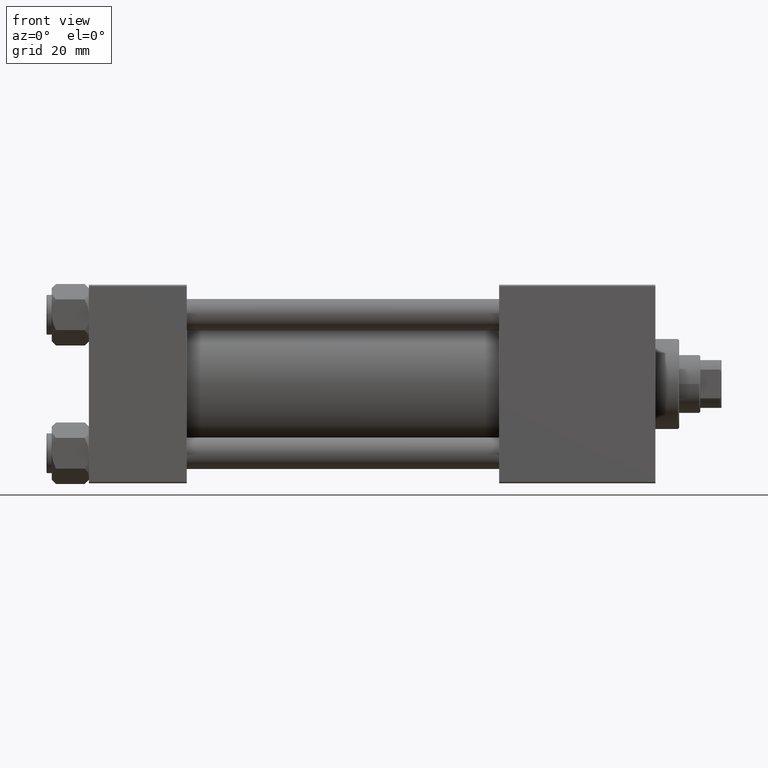
[diagram: clean part render]
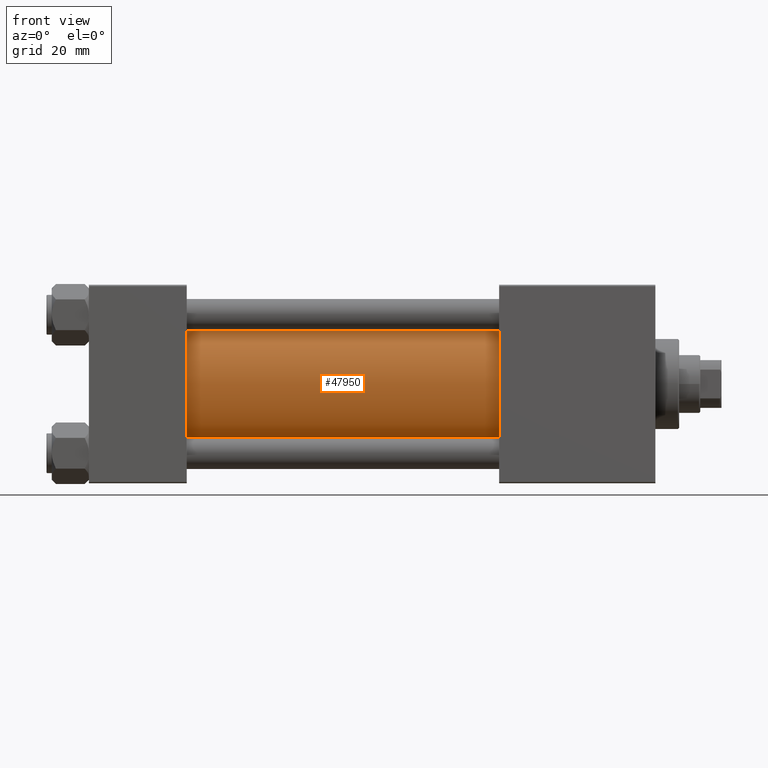
[diagram: same view with one face highlighted and labeled with its STEP entity id]
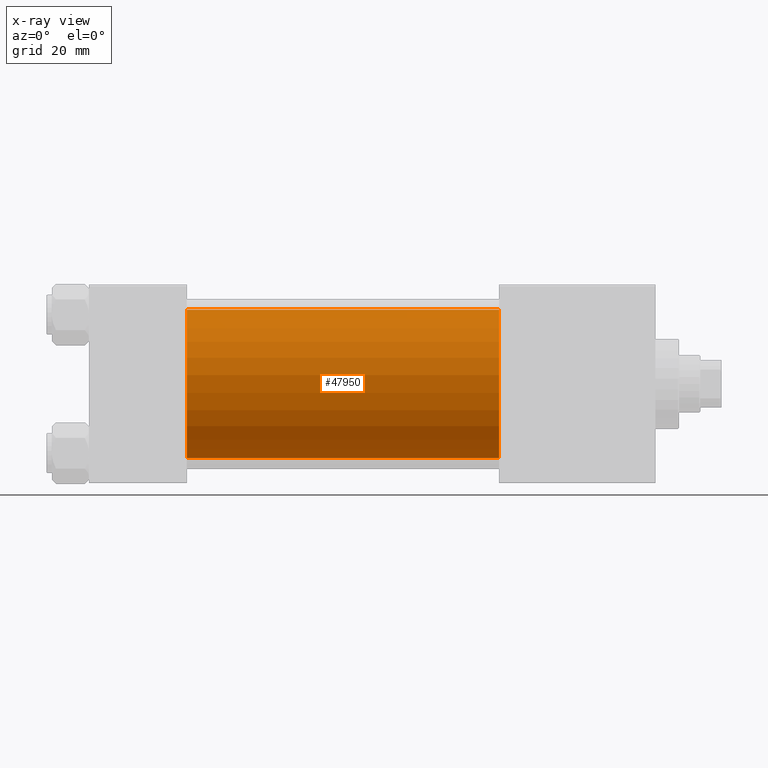
[diagram: x-ray of the same camera — body ghosted, the highlighted face saturated]
A machine part, front view. The second image highlights one B-rep face of the part: STEP entity #47950.
The next image is the same camera in x-ray: the body ghosted, the highlighted face saturated — about 1% of this face is hidden behind the body in this view.
In plain terms, the highlighted cylindrical surface (partial cylindrical patch) has radius 28 mm, axis along (-1, -0, -0).
Its self-contained STEP definition (entity closure, byte-faithful):
#567 = CYLINDRICAL_SURFACE ( 'NONE', #6550, 28.00000000000000000 ) ;
#1295 = EDGE_CURVE ( 'NONE', #22857, #17727, #36285, .T. ) ;
#1559 = EDGE_CURVE ( 'NONE', #15442, #17727, #33489, .T. ) ;
#4130 = CARTESIAN_POINT ( 'NONE',  ( 37.00000000000000711, -2.602085213965210642E-15, 28.00000000000000000 ) ) ;
#6550 = AXIS2_PLACEMENT_3D ( 'NONE', #42585, #31655, #7713 ) ;
#7610 = DIRECTION ( 'NONE',  ( -1.000000000000000000, -0.000000000000000000, -0.000000000000000000 ) ) ;
#7713 = DIRECTION ( 'NONE',  ( 0.000000000000000000, 0.000000000000000000, 1.000000000000000000 ) ) ;
#8110 = LINE ( 'NONE', #19581, #31831 ) ;
#8321 = CARTESIAN_POINT ( 'NONE',  ( 155.0000000000000000, 8.269258236473784371E-16, -28.00000000000000000 ) ) ;
#10460 = CIRCLE ( 'NONE', #12104, 28.00000000000000000 ) ;
#12104 = AXIS2_PLACEMENT_3D ( 'NONE', #25510, #41522, #49661 ) ;
#13976 = VERTEX_POINT ( 'NONE', #32169 ) ;
#14937 = ORIENTED_EDGE ( 'NONE', *, *, #18272, .T. ) ;
#15442 = VERTEX_POINT ( 'NONE', #8321 ) ;
#17545 = ORIENTED_EDGE ( 'NONE', *, *, #44449, .F. ) ;
#17727 = VERTEX_POINT ( 'NONE', #48158 ) ;
#18272 = EDGE_CURVE ( 'NONE', #13976, #22857, #8110, .T. ) ;
#19581 = CARTESIAN_POINT ( 'NONE',  ( 155.0000000000000000, -2.602085213965210642E-15, 28.00000000000000000 ) ) ;
#22857 = VERTEX_POINT ( 'NONE', #4130 ) ;
#25510 = CARTESIAN_POINT ( 'NONE',  ( 155.0000000000000000, -2.602085213965210642E-15, 0.000000000000000000 ) ) ;
#27084 = FACE_OUTER_BOUND ( 'NONE', #34485, .T. ) ;
#31655 = DIRECTION ( 'NONE',  ( -1.000000000000000000, -0.000000000000000000, -0.000000000000000000 ) ) ;
#31831 = VECTOR ( 'NONE', #7610, 1000.000000000000000 ) ;
#32169 = CARTESIAN_POINT ( 'NONE',  ( 155.0000000000000000, -2.602085213965210642E-15, 28.00000000000000000 ) ) ;
#33489 = LINE ( 'NONE', #37304, #44507 ) ;
#34485 = EDGE_LOOP ( 'NONE', ( #46893, #17545, #14937, #47759 ) ) ;
#36285 = CIRCLE ( 'NONE', #42787, 28.00000000000000000 ) ;
#37304 = CARTESIAN_POINT ( 'NONE',  ( 155.0000000000000000, 8.269258236473784371E-16, -28.00000000000000000 ) ) ;
#37618 = DIRECTION ( 'NONE',  ( 0.000000000000000000, 0.000000000000000000, 1.000000000000000000 ) ) ;
#41522 = DIRECTION ( 'NONE',  ( 1.000000000000000000, 0.000000000000000000, 0.000000000000000000 ) ) ;
#42585 = CARTESIAN_POINT ( 'NONE',  ( 155.0000000000000000, -2.602085213965210642E-15, 0.000000000000000000 ) ) ;
#42787 = AXIS2_PLACEMENT_3D ( 'NONE', #46234, #49057, #37618 ) ;
#44449 = EDGE_CURVE ( 'NONE', #13976, #15442, #10460, .T. ) ;
#44507 = VECTOR ( 'NONE', #45925, 1000.000000000000000 ) ;
#45925 = DIRECTION ( 'NONE',  ( -1.000000000000000000, -0.000000000000000000, -0.000000000000000000 ) ) ;
#46234 = CARTESIAN_POINT ( 'NONE',  ( 37.00000000000000711, -2.602085213965210642E-15, 0.000000000000000000 ) ) ;
#46893 = ORIENTED_EDGE ( 'NONE', *, *, #1559, .F. ) ;
#47759 = ORIENTED_EDGE ( 'NONE', *, *, #1295, .T. ) ;
#47950 = ADVANCED_FACE ( 'NONE', ( #27084 ), #567, .T. ) ;
#48158 = CARTESIAN_POINT ( 'NONE',  ( 37.00000000000000711, 8.269258236473784371E-16, -28.00000000000000000 ) ) ;
#49057 = DIRECTION ( 'NONE',  ( 1.000000000000000000, -0.000000000000000000, 0.000000000000000000 ) ) ;
#49661 = DIRECTION ( 'NONE',  ( 0.000000000000000000, 0.000000000000000000, -1.000000000000000000 ) ) ;